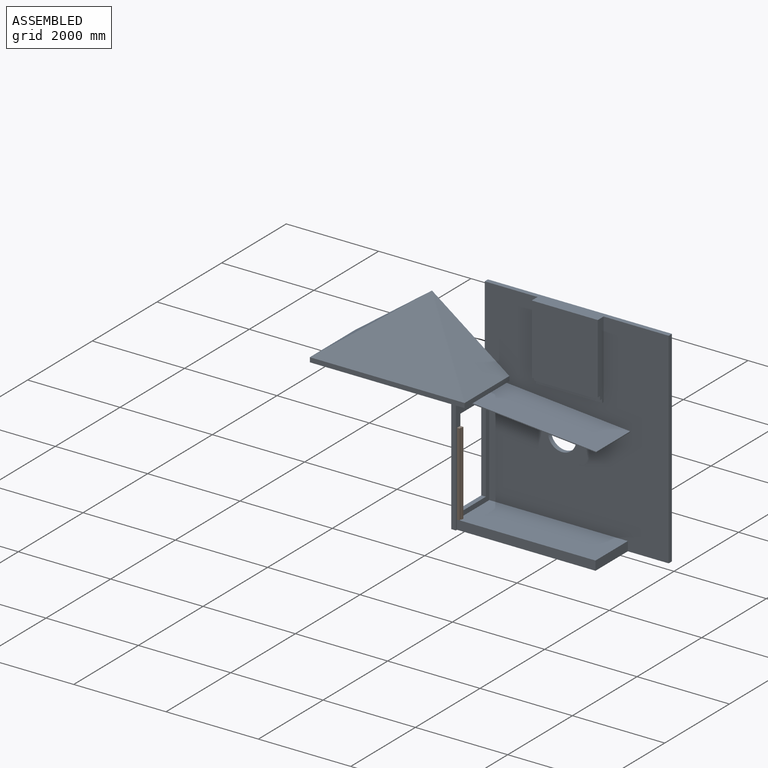
[diagram: assembled view]
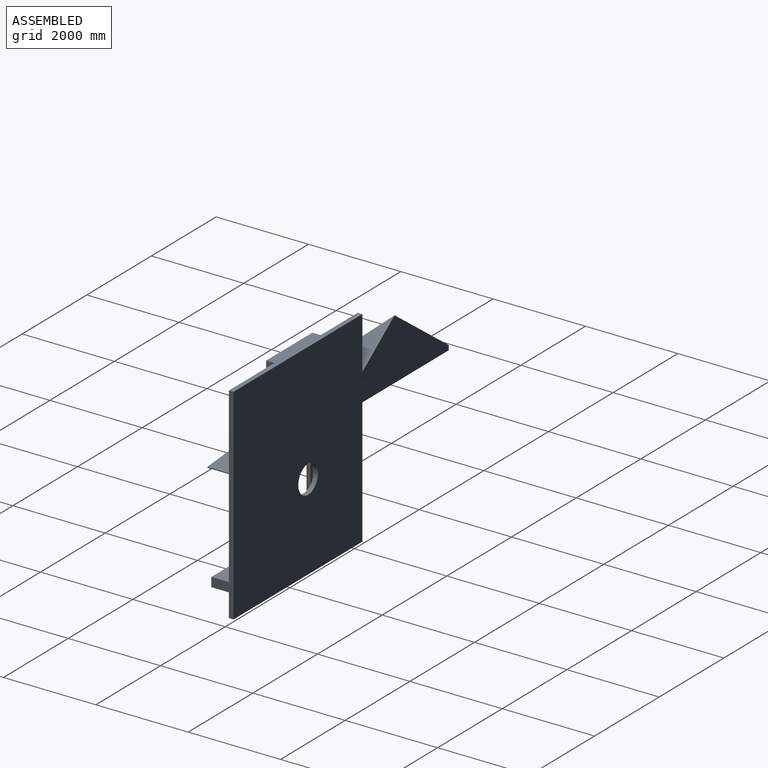
[diagram: assembled view, second angle]
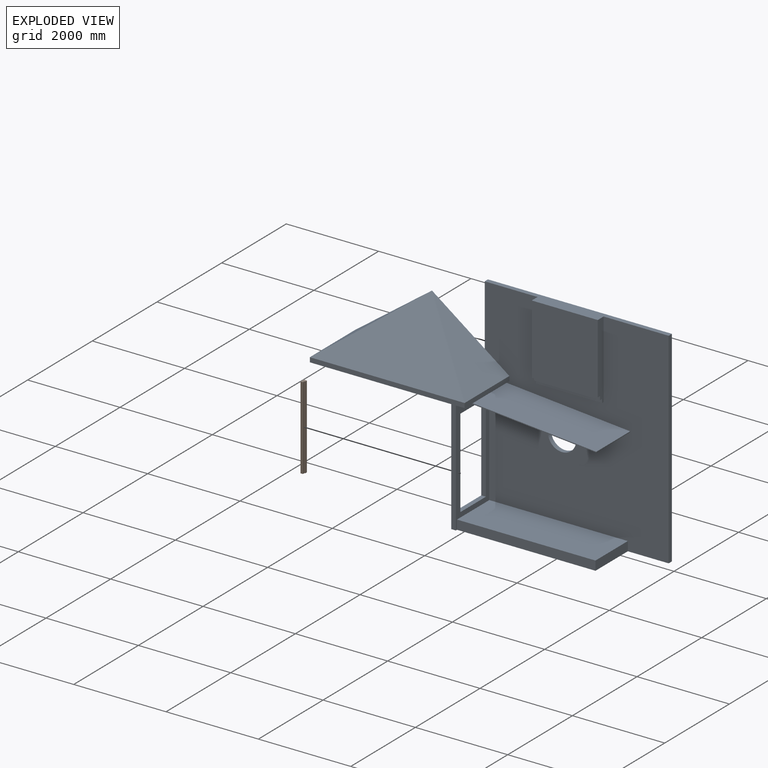
[diagram: exploded view]
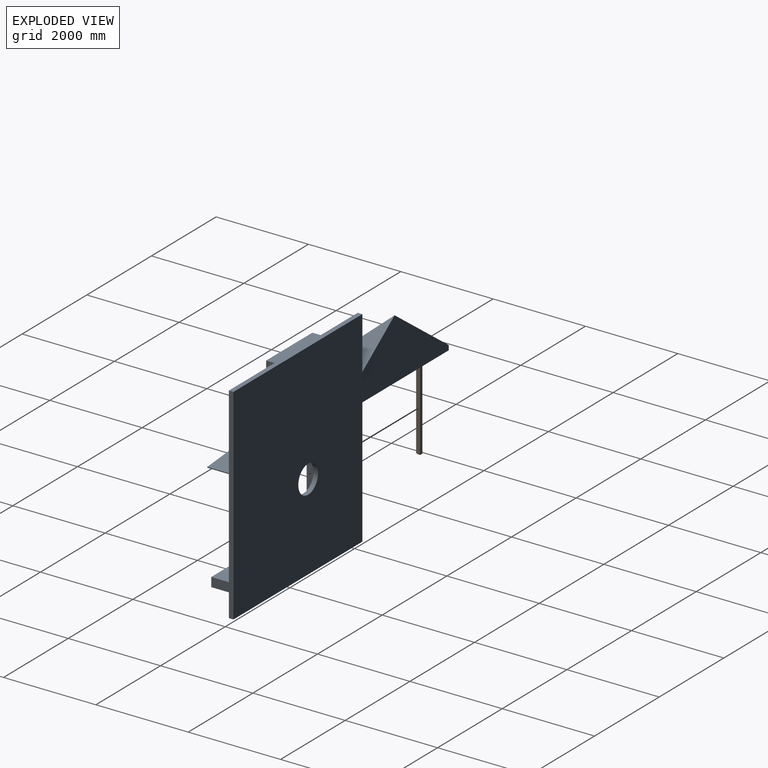
[diagram: exploded view, second angle]
ASSEMBLY  parts=2 mates=3
PART A: 37 faces, bbox 6803x1485x4455 mm
  f0: plane 4455x3985mm, normal (0,-1,0), area 13984123.2mm2, adj f1,f3,f4,f6,f8,f10,f11,f12
  f1: plane 1676.5x1385mm, normal (0.59,0,0.81), area 1437880.4mm2, adj f0,f22,f25,f27
  f2: plane 1676.5x1385mm, normal (-0.59,0,0.81), area 1437880.4mm2, adj f22,f26,f27
  f3: plane 4455x1135mm, normal (-1,0,0), area 1665387mm2, adj f0,f5,f12,f14,f15,f22,f24,f28
  f4: plane 2645x1035mm, normal (1,0,0), area 1019887mm2, adj f0,f5,f9,f11,f12,f24,f28,f29
  f5: plane 2645x100mm, normal (0,-1,0), area 264500mm2, adj f3,f4,f12,f24
  f6: plane 1430x50mm, normal (0,0,-1), area 71500mm2, adj f0,f8,f17,f20
  f7: plane 1515x1430mm, normal (0,-1,0), area 2166450mm2, adj f8,f14,f17,f19
  f8: plane 1675x180mm, normal (1,0,0), area 285660mm2, adj f0,f6,f7,f14,f18,f19,f20,f21
  f9: plane 3000x200mm, normal (0,-1,0), area 600000mm2, adj f4,f10,f11,f12
  f10: plane 1000x200mm, normal (1,0,0), area 200000mm2, adj f0,f9,f11,f12
  f11: plane 3000x1000mm, normal (0,0,1), area 3000000mm2, adj f0,f4,f9,f10
  f12: plane 3985x1135mm, normal (0,0,-1), area 3502000mm2, adj f0,f3,f4,f5,f9,f10,f13,f15
  f13: plane 4455x100mm, normal (1,0,0), area 445500mm2, adj f0,f12,f14,f15
  f14: plane 3985x280mm, normal (0,0,1), area 655900mm2, adj f0,f3,f7,f8,f13,f15,f17
  f15: plane 4455x3985mm, normal (0,1,0), area 17460928.3mm2, adj f3,f12,f13,f14,f16
  f16: cylinder r=305mm len=610mm, axis (0,-1,0), area 191637.2mm2, adj f0,f15
  f17: plane 1675x180mm, normal (-1,0,0), area 285660mm2, adj f0,f6,f7,f14,f18,f19,f20,f21
  f18: plane 1430x80mm, normal (0,-1,0), area 114400mm2, adj f8,f17,f19,f21
  f19: plane 1430x68mm, normal (0,0,-1), area 97240mm2, adj f7,f8,f17,f18
  f20: plane 1430x80mm, normal (0,-1,0), area 114400mm2, adj f6,f8,f17,f21
  f21: plane 1430x62mm, normal (0,0,-1), area 88660mm2, adj f8,f17,f18,f20
  f22: plane 2818x1325mm, normal (0,1,0), area 2230941.8mm2, adj f1,f2,f3,f24,f26
  f23: plane 3353x100mm, normal (0,-1,0), area 335300mm2, adj f24,f25,f26,f27
  f24: plane 3353x1385mm, normal (0,0,-1), area 4540405mm2, adj f0,f3,f4,f5,f22,f23,f25,f26
  f25: plane 1385x100mm, normal (1,0,0), area 138500mm2, adj f0,f1,f23,f24
  f26: plane 1385x100mm, normal (-1,0,0), area 138500mm2, adj f2,f22,f23,f24
  f27: plane 3353x1385mm, normal (0,-0.66,0.75), area 3099870.6mm2, adj f1,f2,f23
  f28: plane 1926x100mm, normal (0,1,0), area 192600mm2, adj f3,f4,f29,f31
  f29: plane 788x100mm, normal (0,0,1), area 78800mm2, adj f3,f4,f28,f30
  f30: plane 1926x100mm, normal (0,-1,0), area 192600mm2, adj f3,f4,f29,f31
  f31: plane 788x100mm, normal (0,0,-1), area 78800mm2, adj f3,f4,f28,f30
  f32: plane 2938x1050mm, normal (-0.09,0,-1), area 3096683.8mm2, adj f0,f33,f35,f36
  f33: plane 1050x19.92mm, normal (1,0,-0.09), area 21000mm2, adj f0,f32,f34,f36
  f34: plane 2938x1050mm, normal (0.09,0,1), area 3096683.8mm2, adj f0,f33,f35,f36
  f35: plane 1050x19.92mm, normal (-1,0,0.09), area 21000mm2, adj f0,f32,f34,f36
  f36: plane 2939.74x276.97mm, normal (0,-1,0), area 58984.5mm2, adj f32,f33,f34,f35
PART B: 8 faces, bbox 70x98x1796 mm
  f0: plane 1796x98mm, normal (1,0,0), area 176008mm2, adj f1,f5,f6,f7
  f1: plane 1796x55mm, normal (0,1,0), area 98780mm2, adj f0,f2,f6,f7
  f2: plane 1796x44mm, normal (-1,0,0), area 79024mm2, adj f1,f3,f6,f7
  f3: plane 1796x15mm, normal (0,1,0), area 26940mm2, adj f2,f4,f6,f7
  f4: plane 1796x54mm, normal (-1,0,0), area 96984mm2, adj f3,f5,f6,f7
  f5: plane 1796x70mm, normal (0,-1,0), area 125720mm2, adj f0,f4,f6,f7
  f6: plane 98x70mm, normal (0,0,1), area 6200mm2, adj f0,f1,f2,f3,f4,f5
  f7: plane 98x70mm, normal (0,0,-1), area 6200mm2, adj f0,f1,f2,f3,f4,f5
PLACE A at identity fixed
PLACE B rot(axis=(0,0,1),180deg) t=(4926.93,-810.89,-255)mm
MATE planar B.f0 <-> A.f4  axis (-1,0,0) through (0,-951,1098)mm
MATE planar B.f1 <-> A.f9  axis (0,-1,0) through (27.5,-1000,1098)mm
MATE planar B.f7 <-> A.f11  axis (0,0,1) through (55,-956,200)mm
